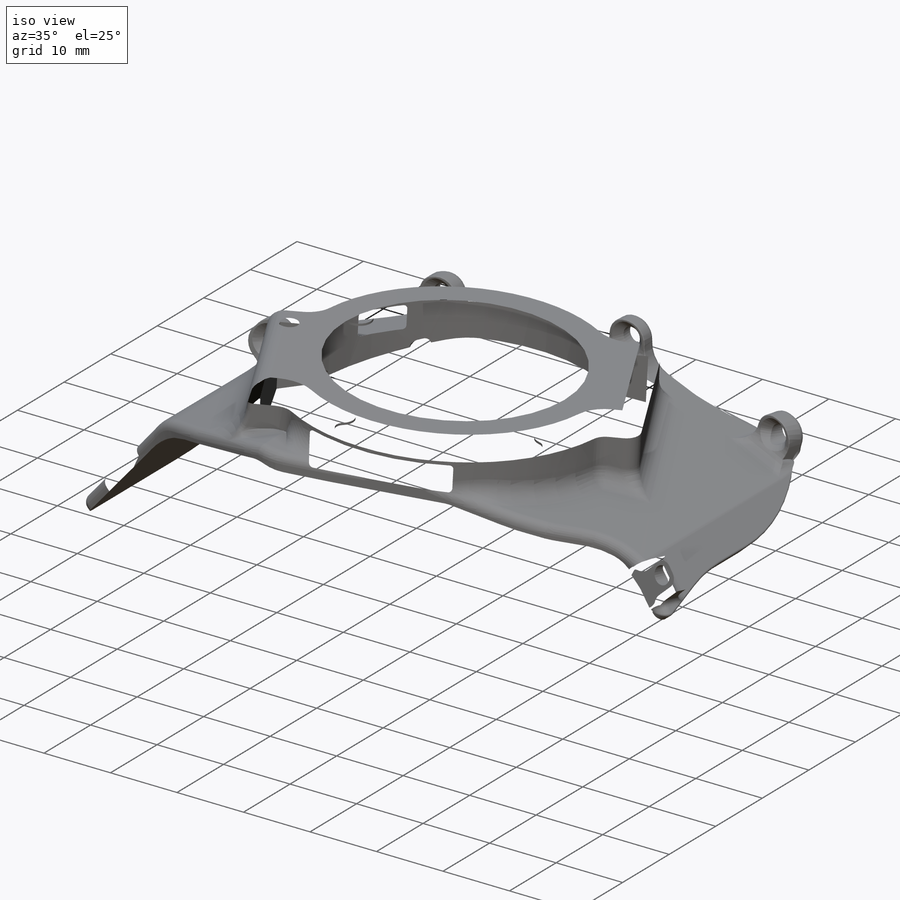
[diagram: iso view]
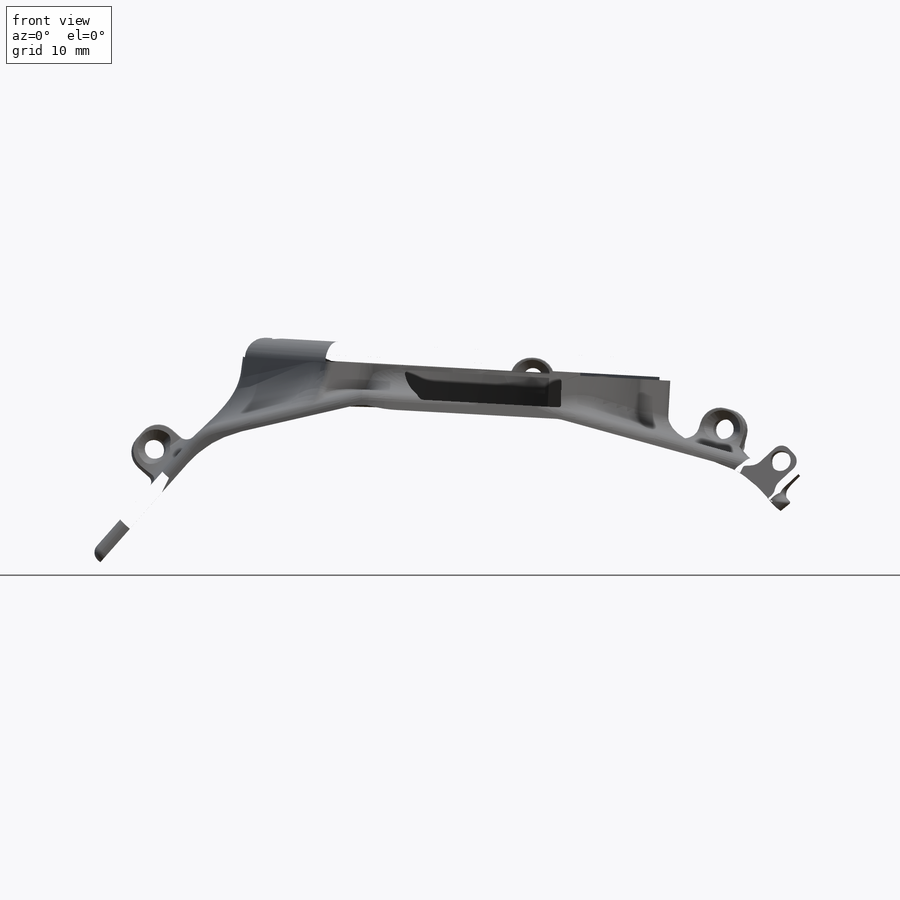
[diagram: front view]
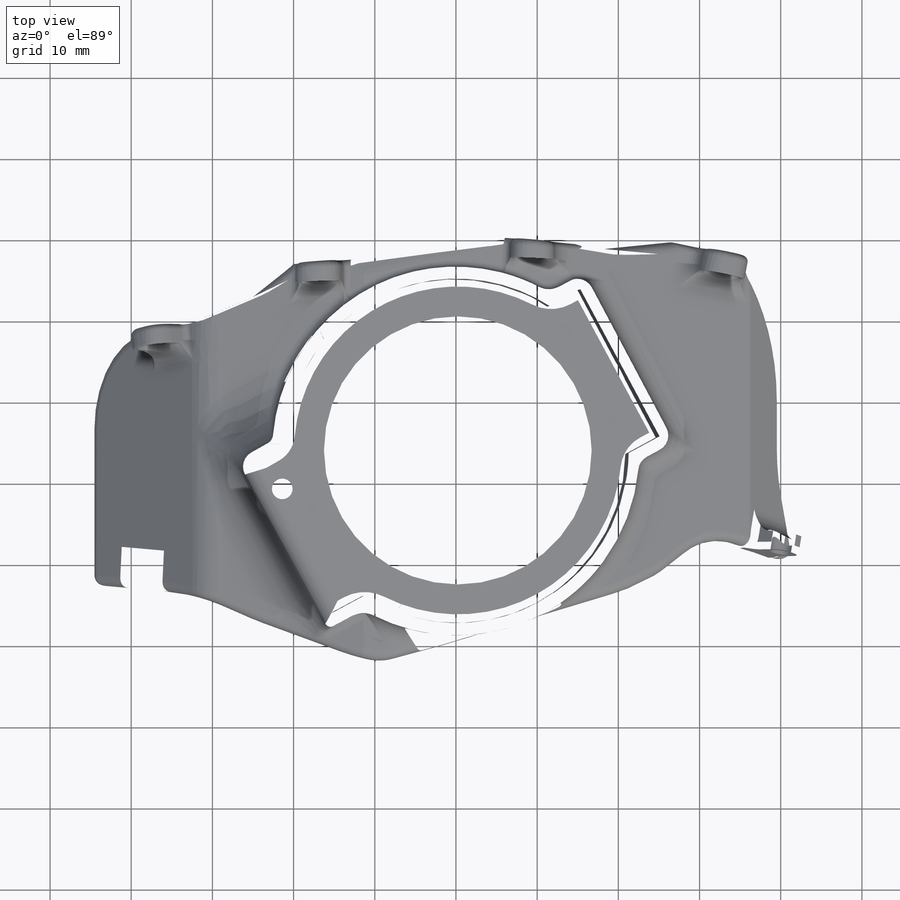
[diagram: top view]
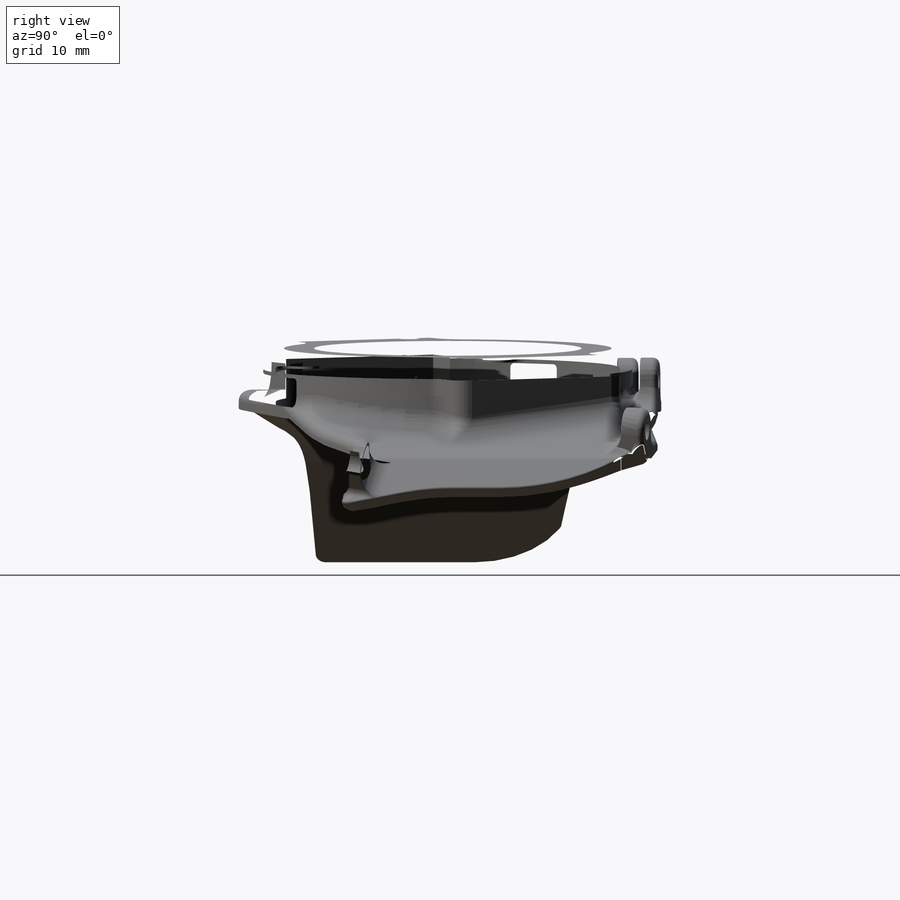
[diagram: right view]
SOLIDWORKS PART (.sldprt)
format: sldprt  version: not decoded by parser v0  size: 4,908,032 bytes
history: native  units: mm
features: fillet x97, sketch x47, cut_extrude x27, extrude x16, chamfer x5, plane x2, material x1 (+16 scaffold rows collapsed)
feature tree (211):
  scaffold x16  (default folders/planes/origin — collapsed)
  material  "Material <not specified>"
  sketch  "Sketch2"  dims[D1=1.651mm]
  extrude  "Boss-Extrude1"  Depth=58.166mm
  sketch  "Sketch3"
  cut_extrude  "Cut-Extrude2"  Depth=111.76mm
  sketch  "Sketch4"  dims[D1=1.778mm]
  extrude  "Boss-Extrude2"  Depth=7.874mm
  sketch  "Sketch6"  dims[D1=0.254mm]
  cut_extrude  "Cut-Extrude3"  Depth=26.924mm
  sketch  "Sketch8"
  cut_extrude  "Cut-Extrude4"  Depth=1.27mm
  sketch  "Sketch11"
  cut_extrude  "Cut-Extrude5"  Depth=20.193mm
  sketch  "Sketch13"
  extrude  "Boss-Extrude5"  Depth=5.08mm
  sketch  "Sketch15"  dims[D1=2.54mm]
  cut_extrude  "Cut-Extrude6"  Depth=3.81mm
  fillet  "Fillet24"  Radius=2.54mm
  fillet  "Fillet25"  Radius=2.54mm
  fillet  "Fillet26"  Radius=0.762mm
  fillet  "Fillet27"  Radius=0.762mm
  chamfer  "Chamfer1"  Distance=1.016mm Angle=45deg
  sketch  "Sketch16"
  extrude  "Boss-Extrude6"  Depth=4.318mm
  sketch  "Sketch17"  dims[D1=0.0mm]
  cut_extrude  "Cut-Extrude7"  Depth=4.318mm
  sketch  "Sketch18"  dims[D1=0.0mm]
  cut_extrude  "Cut-Extrude8"  Depth=4.318mm
  sketch  "Sketch19"
  extrude  "Boss-Extrude7"  [1 undecoded]
  sketch  "Sketch22"
  cut_extrude  "Cut-Extrude9"  Depth=4.318mm
  sketch  "Sketch23"  dims[D1=0.0mm]
  sketch  "Sketch25"  dims[D1=0.0mm]
  sketch  "Sketch26"  dims[D1=0.0mm]
  extrude  "Boss-Extrude8"  [1 undecoded]
  sketch  "Sketch27"  dims[D1=~2.33535mm]
  extrude  "Boss-Extrude9"  Depth=5.08mm
  sketch  "Sketch28"  dims[D1=2.54mm]
  cut_extrude  "Cut-Extrude10"  Depth=5.08mm
  fillet  "Fillet28"  Radius=2.54mm
  fillet  "Fillet31"  Radius=0.762mm
  fillet  "Fillet32"  Radius=1.524mm
  fillet  "Fillet33"  Radius=2.54mm
  fillet  "Fillet35"  Radius=0.762mm
  fillet  "Fillet36"  Radius=5.842mm
  fillet  "Fillet37"  Radius=10.922mm
  fillet  "Fillet38"  Radius=1.27mm
  fillet  "Fillet39"  Radius=24.13mm
  fillet  "Fillet40"  Radius=6.35mm
  sketch  "Sketch29"
  extrude  "Boss-Extrude10"  Depth=5.08mm
  sketch  "Sketch30"  dims[D1=2.54mm]
  cut_extrude  "Cut-Extrude11"  Depth=5.08mm
  fillet  "Fillet42"  Radius=1.016mm
  fillet  "Fillet43"  Radius=3.556mm
  fillet  "Fillet44"  Radius=2.54mm
  sketch  "Sketch32"
  cut_extrude  "Cut-Extrude12"  Depth=8.636mm
  fillet  "Fillet45"  Radius=0.762mm
  chamfer  "Chamfer2"  Distance=1.016mm Angle=45deg
  fillet  "Fillet48"  Radius=13.462mm
  fillet  "Fillet49"  Radius=2.032mm
  sketch  "Sketch33"
  extrude  "Boss-Extrude11"  Depth=5.08mm
  sketch  "Sketch34"
  cut_extrude  "Cut-Extrude13"  Depth=5.842mm
  sketch  "Sketch35"  dims[D1=2.54mm]
  cut_extrude  "Cut-Extrude14"  Depth=5.842mm
  fillet  "Fillet50"  Radius=2.54mm
  fillet  "Fillet51"  Radius=2.54mm
  fillet  "Fillet52"  Radius=1.778mm
  fillet  "Fillet53"  Radius=0.762mm
  chamfer  "Chamfer3"  Distance=1.016mm Angle=45deg
  fillet  "Fillet54"  Radius=1.016mm
  fillet  "Fillet55"  Radius=0.254mm
  fillet  "Fillet56"  Radius=1.27mm
  fillet  "Fillet59"  Radius=6.35mm
  fillet  "Fillet60"  Radius=8.89mm
  fillet  "Fillet61"  Radius=2.794mm
  fillet  "Fillet62"  Radius=2.794mm
  fillet  "Fillet63"  Radius=1.016mm
  fillet  "Fillet64"  Radius=1.016mm
  fillet  "Fillet65"  Radius=2.54mm
  fillet  "Fillet66"  Radius=2.032mm
  fillet  "Fillet67"  Radius=2.54mm
  fillet  "Fillet68"  Radius=1.27mm
  fillet  "Fillet69"  Radius=2.032mm
  fillet  "Fillet70"  Radius=0.762mm
  fillet  "Fillet71"  Radius=0.762mm
  fillet  "Fillet72"  Radius=0.127mm
  fillet  "Fillet73"  Radius=0.762mm
  fillet  "Fillet74"  Radius=0.127mm
  fillet  "Fillet75"  Radius=2.54mm
  sketch  "Sketch37"  dims[D1=1.778mm D2=0.762mm]
  cut_extrude  "Cut-Extrude16"  Depth=0.762mm
  fillet  "Fillet76"  Radius=1.27mm
  fillet  "Fillet77"  Radius=1.27mm
  sketch  "Sketch38"  dims[D1=2.54mm]
  cut_extrude  "Cut-Extrude18"  Depth=0.762mm
  plane  "Plane1"
  fillet  "Fillet78"  Radius=1.27mm
  sketch  "Sketch40"  dims[D1=2.54mm]
  cut_extrude  "Cut-Extrude19"  Depth=0.762mm
  fillet  "Fillet79"  Radius=1.27mm
  fillet  "Fillet80"  Radius=0.762mm
  fillet  "Fillet81"  Radius=1.27mm
  sketch  "Sketch41"  dims[D1=2.54mm]
  cut_extrude  "Cut-Extrude20"  Depth=0.762mm
  sketch  "Sketch42"  dims[D1=2.54mm]
  cut_extrude  "Cut-Extrude22"  Depth=0.762mm
  sketch  "Sketch43"  dims[D1=0.0mm]
  sketch  "Sketch44"  dims[D1=0.0mm]
  fillet  "Fillet82"  Radius=1.27mm
  fillet  "Fillet83"  Radius=52.07mm
  fillet  "Fillet84"  Radius=52.07mm
  fillet  "Fillet85"  Radius=1.27mm
  fillet  "Fillet86"  Radius=1.27mm
  fillet  "Fillet87"  Radius=1.27mm
  fillet  "Fillet88"  Radius=1.27mm
  fillet  "Fillet89"  Radius=1.27mm
  fillet  "Fillet90"  Radius=0.508mm
  fillet  "Fillet91"  Radius=12.7mm
  fillet  "Fillet92"  Radius=2.54mm
  fillet  "Fillet93"  Radius=1.27mm
  fillet  "Fillet94"  Radius=1.27mm
  sketch  "Sketch45"
  extrude  "Boss-Extrude13"  Depth=5.08mm
  sketch  "Sketch48"  dims[D1=2.54mm]
  cut_extrude  "Cut-Extrude25"  Depth=5.08mm
  fillet  "Fillet107"  Radius=10.922mm
  fillet  "Fillet108"  Radius=10.922mm
  fillet  "Fillet109"  Radius=2.54mm
  fillet  "Fillet110"  Radius=0.762mm
  fillet  "Fillet112"  Radius=0.762mm
  fillet  "Fillet113"  Radius=2.032mm
  fillet  "Fillet114"  Radius=0.762mm
  sketch  "Sketch49"
  extrude  "Boss-Extrude14"  Depth=5.08mm
  sketch  "Sketch50"  dims[D1=2.54mm]
  cut_extrude  "Cut-Extrude26"  Depth=5.08mm
  fillet  "Fillet115"  Radius=10.922mm
  fillet  "Fillet116"  Radius=2.54mm
  fillet  "Fillet117"  Radius=1.27mm
  fillet  "Fillet118"  Radius=2.032mm
  fillet  "Fillet119"  Radius=0.762mm
  chamfer  "Chamfer5"  Distance=1.016mm Angle=45deg
  chamfer  "Chamfer6"  Distance=1.016mm Angle=45deg
  sketch  "Sketch51"  dims[D1=1.27mm D2=1.27mm D3=1.27mm]
  extrude  "Boss-Extrude15"  [1 undecoded]
  sketch  "Sketch52"  dims[D1=0.0mm]
  extrude  "Boss-Extrude16"  [1 undecoded]
  sketch  "Sketch53"  dims[D1=0.0mm]
  extrude  "Boss-Extrude17"  [1 undecoded]
  fillet  "Fillet120"  Radius=1.27mm
  fillet  "Fillet121"  Radius=1.27mm
  fillet  "Fillet122"  Radius=1.27mm
  fillet  "Fillet126"  Radius=1.27mm
  fillet  "Fillet127"  Radius=3.81mm
  fillet  "Fillet128"  Radius=1.27mm
  fillet  "Fillet129"  Radius=1.27mm
  fillet  "Fillet130"  Radius=1.27mm
  sketch  "Sketch54"  dims[D1=0.0mm]
  cut_extrude  "Cut-Extrude27"  Depth=2.54mm
  sketch  "Sketch55"  dims[D1=0.0mm]
  extrude  "Boss-Extrude18"  Depth=1.651mm
  fillet  "Fillet131"  Radius=2.54mm
  sketch  "Sketch57"  dims[D1=33.02mm]
  cut_extrude  "Cut-Extrude28"  Depth=0.762mm
  sketch  "Sketch58"  dims[D1=2.54mm]
  cut_extrude  "Cut-Extrude29"  [1 undecoded]
  fillet  "Fillet132"  Radius=0.254mm
  fillet  "Fillet133"  Radius=1.27mm
  fillet  "Fillet134"  Radius=0.127mm
  fillet  "Fillet135"  Radius=0.508mm
  fillet  "Fillet136"  Radius=0.762mm
  fillet  "Fillet138"  Radius=0.762mm
  cut_extrude  "Cut-Extrude30"  [1 undecoded]
  sketch  "Sketch59"  dims[c1.D1=~18.771558mm c1.D2=~3.551376mm c2.D1=15.367mm]
  cut_extrude  "Cut-Extrude31"  [1 undecoded]
  sketch  "Sketch60"  dims[c1.D1=0.254mm c1.D2=0.254mm c2.D1=8.636mm]
  cut_extrude  "Cut-Extrude32"  [1 undecoded]
  sketch  "Sketch61"  dims[c1.D1=2.54mm c2.D1=4.699mm]
  sketch  "Sketch62"  dims[D1=0.0mm D2=0.0mm]
  extrude  "Boss-Extrude19"  Depth=0.635mm
  fillet  "Fillet139"  Radius=2.54mm
  fillet  "Fillet140"  Radius=27.94mm
  fillet  "Fillet141"  Radius=5.08mm
  fillet  "Fillet142"  Radius=17.78mm
  fillet  "Fillet143"  Radius=0.508mm
  fillet  "Fillet144"  Radius=0.508mm
  sketch  "Sketch63"  dims[D1=0.0mm D2=0.0mm]
  cut_extrude  "Cut-Extrude33"  Depth=2.54mm
  fillet  "Fillet145"  Radius=0.508mm
  plane  "Plane2"  Offset=20.32mm
decode coverage: 170 of 192 modeling features carry decoded parameters
note: ~ marks probable driven/reference dimensions
note: 9 parameter values undecoded
summary: no parameter record found for 9 features
note: suppression state not decoded; provenance and decode notes live in map.json
